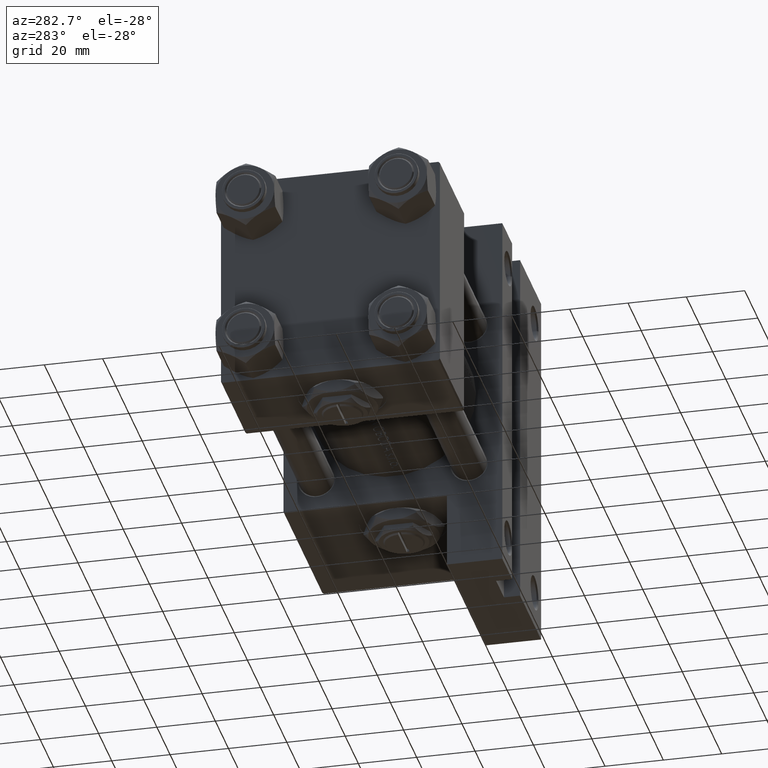
[diagram: clean part render]
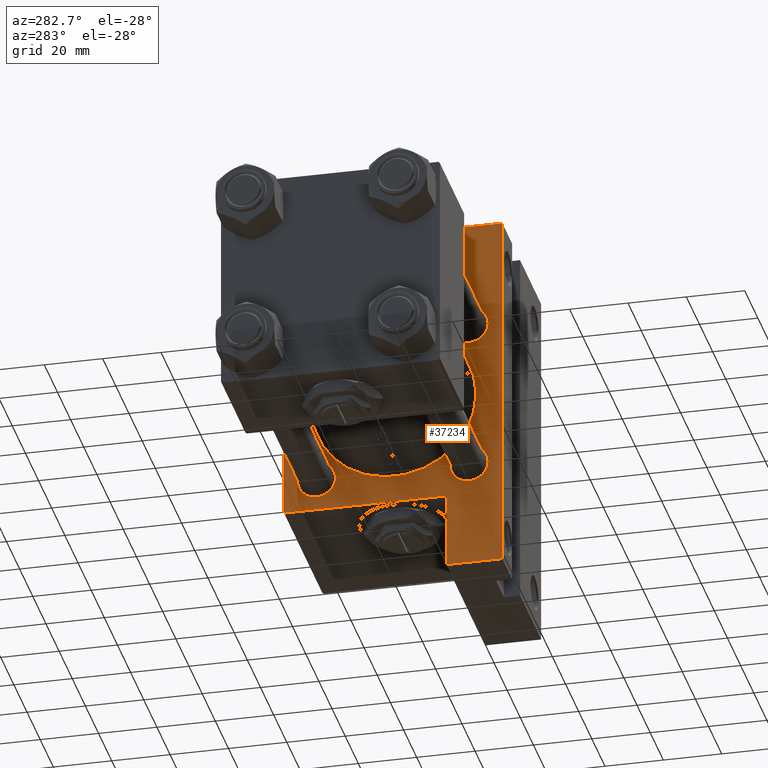
[diagram: same view with one face highlighted and labeled with its STEP entity id]
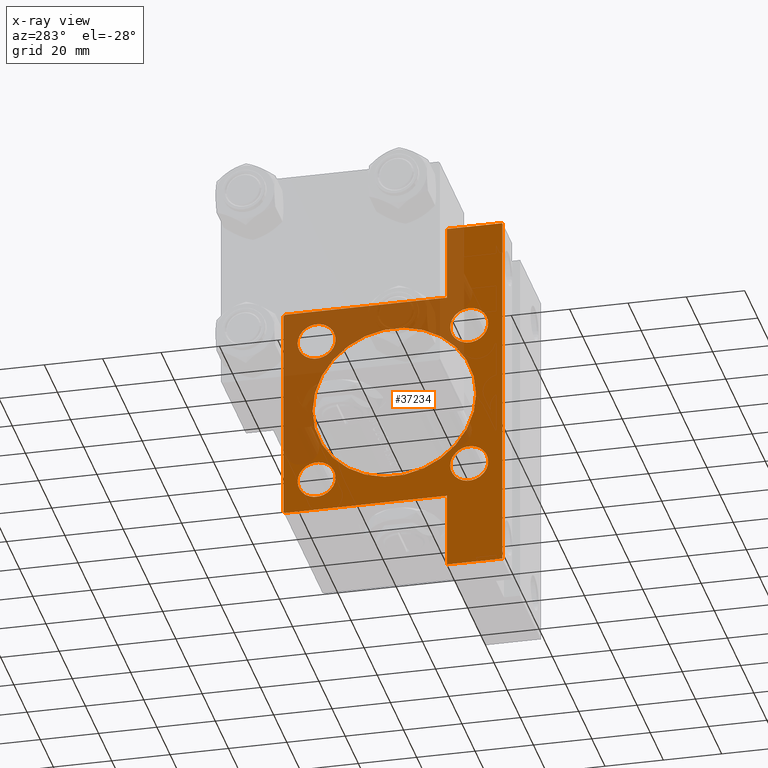
[diagram: x-ray of the same camera — body ghosted, the highlighted face saturated]
A machine part, auxiliary view. The second image highlights one B-rep face of the part: STEP entity #37234.
The next image is the same camera in x-ray: the body ghosted, the highlighted face saturated — about 37% of this face is hidden behind the body in this view.
In plain terms, the highlighted planar face has unit normal (-1, 0, 0).
Its self-contained STEP definition (entity closure, byte-faithful):
#601 = AXIS2_PLACEMENT_3D ( 'NONE', #37232, #17621, #44495 ) ;
#608 = CARTESIAN_POINT ( 'NONE',  ( 95.00000000000000000, 26.14999999999999858, 32.65000000000000568 ) ) ;
#650 = CARTESIAN_POINT ( 'NONE',  ( 95.00000000000000000, -26.14999999999999147, -32.65000000000002700 ) ) ;
#1068 = LINE ( 'NONE', #23197, #16963 ) ;
#1656 = CIRCLE ( 'NONE', #28155, 6.500000000000008882 ) ;
#2087 = ORIENTED_EDGE ( 'NONE', *, *, #8137, .T. ) ;
#2089 = DIRECTION ( 'NONE',  ( 1.000000000000000000, 0.000000000000000000, -0.000000000000000000 ) ) ;
#2358 = EDGE_CURVE ( 'NONE', #13816, #39200, #30454, .T. ) ;
#2895 = VERTEX_POINT ( 'NONE', #650 ) ;
#2932 = DIRECTION ( 'NONE',  ( 1.000000000000000000, 0.000000000000000000, -0.000000000000000000 ) ) ;
#3239 = CIRCLE ( 'NONE', #40975, 6.500000000000008882 ) ;
#3298 = EDGE_LOOP ( 'NONE', ( #44631, #12015 ) ) ;
#4164 = ORIENTED_EDGE ( 'NONE', *, *, #12961, .T. ) ;
#4298 = EDGE_CURVE ( 'NONE', #33966, #28592, #41866, .T. ) ;
#4715 = ORIENTED_EDGE ( 'NONE', *, *, #10370, .T. ) ;
#5407 = CIRCLE ( 'NONE', #601, 6.500000000000008882 ) ;
#5528 = CARTESIAN_POINT ( 'NONE',  ( 95.00000000000000000, 3.490243377569955667E-15, -28.50000000000000000 ) ) ;
#6113 = CARTESIAN_POINT ( 'NONE',  ( 95.00000000000000000, 63.50000000000000000, -37.50000000000000000 ) ) ;
#6352 = EDGE_CURVE ( 'NONE', #44929, #12381, #48087, .T. ) ;
#6944 = EDGE_CURVE ( 'NONE', #48220, #46235, #8399, .T. ) ;
#7320 = ORIENTED_EDGE ( 'NONE', *, *, #16291, .F. ) ;
#7622 = VERTEX_POINT ( 'NONE', #8929 ) ;
#8137 = EDGE_CURVE ( 'NONE', #2895, #38371, #1656, .T. ) ;
#8359 = DIRECTION ( 'NONE',  ( 0.000000000000000000, -1.000000000000000000, -1.850371707708594316E-16 ) ) ;
#8399 = LINE ( 'NONE', #15930, #39322 ) ;
#8809 = AXIS2_PLACEMENT_3D ( 'NONE', #38814, #19736, #27523 ) ;
#8929 = CARTESIAN_POINT ( 'NONE',  ( 95.00000000000000000, 26.14999999999999858, -19.64999999999999503 ) ) ;
#9487 = VECTOR ( 'NONE', #29991, 1000.000000000000000 ) ;
#9694 = LINE ( 'NONE', #47638, #10516 ) ;
#9855 = ORIENTED_EDGE ( 'NONE', *, *, #44781, .T. ) ;
#9905 = CARTESIAN_POINT ( 'NONE',  ( 95.00000000000000000, -26.14999999999999147, 19.65000000000000213 ) ) ;
#9944 = DIRECTION ( 'NONE',  ( 0.000000000000000000, 0.000000000000000000, 1.000000000000000000 ) ) ;
#10011 = CARTESIAN_POINT ( 'NONE',  ( 94.99999999999998579, -63.50000000000000000, -18.50000000000000000 ) ) ;
#10079 = DIRECTION ( 'NONE',  ( -0.000000000000000000, 0.7071067811865672237, 0.7071067811865279218 ) ) ;
#10344 = CARTESIAN_POINT ( 'NONE',  ( 95.00000000000000000, 37.50000000000000000, 37.49999999999999289 ) ) ;
#10370 = EDGE_CURVE ( 'NONE', #12558, #23227, #29836, .T. ) ;
#10400 = CIRCLE ( 'NONE', #24064, 28.00000000000000000 ) ;
#10516 = VECTOR ( 'NONE', #32563, 1000.000000000000114 ) ;
#10768 = EDGE_LOOP ( 'NONE', ( #30867, #2087 ) ) ;
#10880 = DIRECTION ( 'NONE',  ( 0.000000000000000000, 0.000000000000000000, -1.000000000000000000 ) ) ;
#11018 = ORIENTED_EDGE ( 'NONE', *, *, #6944, .T. ) ;
#11228 = CARTESIAN_POINT ( 'NONE',  ( 95.00000000000000000, -26.14999999999999147, 32.65000000000001990 ) ) ;
#11290 = CARTESIAN_POINT ( 'NONE',  ( 95.00000000000000000, -37.50000000000000000, 37.49999999999997868 ) ) ;
#11382 = CARTESIAN_POINT ( 'NONE',  ( 95.00000000000000000, 6.123233995736772199E-17, 27.50000000000000000 ) ) ;
#11522 = CARTESIAN_POINT ( 'NONE',  ( 95.00000000000000000, 26.14999999999999858, 26.15000000000000213 ) ) ;
#11573 = EDGE_CURVE ( 'NONE', #16020, #46884, #41869, .T. ) ;
#11635 = VERTEX_POINT ( 'NONE', #27794 ) ;
#12015 = ORIENTED_EDGE ( 'NONE', *, *, #30690, .T. ) ;
#12129 = LINE ( 'NONE', #42776, #26429 ) ;
#12304 = EDGE_CURVE ( 'NONE', #33966, #46235, #27435, .T. ) ;
#12347 = CARTESIAN_POINT ( 'NONE',  ( 94.99999999999998579, -63.50000000000000000, -18.50000000000000000 ) ) ;
#12381 = VERTEX_POINT ( 'NONE', #5528 ) ;
#12511 = EDGE_CURVE ( 'NONE', #11635, #28592, #19075, .T. ) ;
#12530 = DIRECTION ( 'NONE',  ( 0.000000000000000000, 0.000000000000000000, -1.000000000000000000 ) ) ;
#12558 = VERTEX_POINT ( 'NONE', #36145 ) ;
#12961 = EDGE_CURVE ( 'NONE', #15891, #48220, #29234, .T. ) ;
#13031 = CARTESIAN_POINT ( 'NONE',  ( 95.00000000000000000, 6.123233995736772199E-17, -0.5000000000000004441 ) ) ;
#13550 = ORIENTED_EDGE ( 'NONE', *, *, #21171, .T. ) ;
#13816 = VERTEX_POINT ( 'NONE', #26039 ) ;
#13971 = EDGE_CURVE ( 'NONE', #38371, #2895, #24857, .T. ) ;
#14774 = CARTESIAN_POINT ( 'NONE',  ( 95.00000000000000000, 0.000000000000000000, 0.000000000000000000 ) ) ;
#14972 = CARTESIAN_POINT ( 'NONE',  ( 95.00000000000000000, 63.50000000000000000, -18.50000000000000000 ) ) ;
#15891 = VERTEX_POINT ( 'NONE', #14972 ) ;
#15930 = CARTESIAN_POINT ( 'NONE',  ( 95.00000000000000000, 37.50000000000000000, -37.50000000000000000 ) ) ;
#16020 = VERTEX_POINT ( 'NONE', #9905 ) ;
#16163 = DIRECTION ( 'NONE',  ( 0.000000000000000000, 0.000000000000000000, 1.000000000000000000 ) ) ;
#16291 = EDGE_CURVE ( 'NONE', #24195, #31434, #12129, .T. ) ;
#16415 = CARTESIAN_POINT ( 'NONE',  ( 95.00000000000000000, -26.14999999999999147, -26.15000000000000924 ) ) ;
#16521 = CARTESIAN_POINT ( 'NONE',  ( 95.00000000000000000, 26.14999999999999858, -32.65000000000001279 ) ) ;
#16737 = DIRECTION ( 'NONE',  ( 1.000000000000000000, 0.000000000000000000, -0.000000000000000000 ) ) ;
#16963 = VECTOR ( 'NONE', #26975, 1000.000000000000000 ) ;
#17496 = ORIENTED_EDGE ( 'NONE', *, *, #12304, .F. ) ;
#17621 = DIRECTION ( 'NONE',  ( 1.000000000000000000, 0.000000000000000000, -0.000000000000000000 ) ) ;
#17815 = AXIS2_PLACEMENT_3D ( 'NONE', #37369, #2932, #33580 ) ;
#17933 = CARTESIAN_POINT ( 'NONE',  ( 95.00000000000000000, 26.14999999999999858, 26.15000000000000213 ) ) ;
#18180 = CARTESIAN_POINT ( 'NONE',  ( 95.00000000000000000, 6.123233995736772199E-17, -0.5000000000000004441 ) ) ;
#18288 = FACE_BOUND ( 'NONE', #10768, .T. ) ;
#18468 = AXIS2_PLACEMENT_3D ( 'NONE', #14774, #49187, #44903 ) ;
#18545 = FACE_OUTER_BOUND ( 'NONE', #25234, .T. ) ;
#18599 = DIRECTION ( 'NONE',  ( 0.000000000000000000, 0.000000000000000000, 1.000000000000000000 ) ) ;
#19075 = LINE ( 'NONE', #11290, #20670 ) ;
#19268 = EDGE_CURVE ( 'NONE', #46884, #16020, #25745, .T. ) ;
#19571 = VECTOR ( 'NONE', #30208, 1000.000000000000000 ) ;
#19736 = DIRECTION ( 'NONE',  ( 1.000000000000000000, 0.000000000000000000, -0.000000000000000000 ) ) ;
#19791 = EDGE_CURVE ( 'NONE', #7622, #31149, #3239, .T. ) ;
#19815 = ORIENTED_EDGE ( 'NONE', *, *, #19268, .T. ) ;
#20230 = DIRECTION ( 'NONE',  ( 0.000000000000000000, -1.000000000000000000, 0.000000000000000000 ) ) ;
#20670 = VECTOR ( 'NONE', #22870, 1000.000000000000000 ) ;
#20684 = DIRECTION ( 'NONE',  ( 1.000000000000000000, 0.000000000000000000, -0.000000000000000000 ) ) ;
#20692 = EDGE_CURVE ( 'NONE', #24195, #13816, #9694, .T. ) ;
#21171 = EDGE_CURVE ( 'NONE', #12381, #44929, #10400, .T. ) ;
#21413 = EDGE_CURVE ( 'NONE', #11635, #31434, #41463, .T. ) ;
#21586 = CARTESIAN_POINT ( 'NONE',  ( 95.00000000000000000, 37.00000000000000000, 37.49999999999999289 ) ) ;
#22156 = CARTESIAN_POINT ( 'NONE',  ( 95.00000000000000000, -37.24999999999894129, 37.25000000000100897 ) ) ;
#22384 = ORIENTED_EDGE ( 'NONE', *, *, #6352, .T. ) ;
#22573 = FACE_BOUND ( 'NONE', #42137, .T. ) ;
#22803 = CARTESIAN_POINT ( 'NONE',  ( 94.99999999999998579, -63.50000000000000000, -18.50000000000000000 ) ) ;
#22870 = DIRECTION ( 'NONE',  ( 0.000000000000000000, -9.251858538542972814E-17, -1.000000000000000000 ) ) ;
#23197 = CARTESIAN_POINT ( 'NONE',  ( 95.00000000000000000, 63.50000000000000000, -18.50000000000000000 ) ) ;
#23227 = VERTEX_POINT ( 'NONE', #608 ) ;
#24064 = AXIS2_PLACEMENT_3D ( 'NONE', #18180, #33247, #10880 ) ;
#24195 = VERTEX_POINT ( 'NONE', #21586 ) ;
#24857 = CIRCLE ( 'NONE', #8809, 6.500000000000008882 ) ;
#25234 = EDGE_LOOP ( 'NONE', ( #7320, #45943, #46984, #28628, #4164, #11018, #17496, #29403, #45171, #25825 ) ) ;
#25745 = CIRCLE ( 'NONE', #45778, 6.500000000000008882 ) ;
#25825 = ORIENTED_EDGE ( 'NONE', *, *, #21413, .T. ) ;
#26039 = CARTESIAN_POINT ( 'NONE',  ( 95.00000000000000000, 37.50000000000000000, 36.99999999999999289 ) ) ;
#26429 = VECTOR ( 'NONE', #8359, 1000.000000000000000 ) ;
#26871 = DIRECTION ( 'NONE',  ( 1.000000000000000000, 0.000000000000000000, -0.000000000000000000 ) ) ;
#26897 = CARTESIAN_POINT ( 'NONE',  ( 95.00000000000000000, -26.14999999999999147, 26.15000000000000924 ) ) ;
#26975 = DIRECTION ( 'NONE',  ( -0.000000000000000000, 1.000000000000000000, -0.000000000000000000 ) ) ;
#27435 = LINE ( 'NONE', #12347, #47929 ) ;
#27523 = DIRECTION ( 'NONE',  ( 0.000000000000000000, 0.000000000000000000, 1.000000000000000000 ) ) ;
#27794 = CARTESIAN_POINT ( 'NONE',  ( 95.00000000000000000, -37.50000000000000000, 36.99999999999997868 ) ) ;
#28155 = AXIS2_PLACEMENT_3D ( 'NONE', #16415, #20684, #16163 ) ;
#28592 = VERTEX_POINT ( 'NONE', #30760 ) ;
#28628 = ORIENTED_EDGE ( 'NONE', *, *, #39258, .T. ) ;
#29234 = LINE ( 'NONE', #29730, #9487 ) ;
#29403 = ORIENTED_EDGE ( 'NONE', *, *, #4298, .T. ) ;
#29730 = CARTESIAN_POINT ( 'NONE',  ( 95.00000000000000000, 63.50000000000000000, -18.50000000000000000 ) ) ;
#29836 = CIRCLE ( 'NONE', #31413, 6.499999999999995559 ) ;
#29991 = DIRECTION ( 'NONE',  ( 0.000000000000000000, 0.000000000000000000, -1.000000000000000000 ) ) ;
#30208 = DIRECTION ( 'NONE',  ( 0.000000000000000000, 0.000000000000000000, -1.000000000000000000 ) ) ;
#30327 = DIRECTION ( 'NONE',  ( 5.337610695313252371E-16, 1.000000000000000000, 0.000000000000000000 ) ) ;
#30454 = LINE ( 'NONE', #10344, #19571 ) ;
#30565 = CARTESIAN_POINT ( 'NONE',  ( 95.00000000000000000, -36.99999999999997158, 37.49999999999997868 ) ) ;
#30690 = EDGE_CURVE ( 'NONE', #31149, #7622, #5407, .T. ) ;
#30760 = CARTESIAN_POINT ( 'NONE',  ( 95.00000000000000000, -37.50000000000000000, -18.50000000000000000 ) ) ;
#30867 = ORIENTED_EDGE ( 'NONE', *, *, #13971, .T. ) ;
#31149 = VERTEX_POINT ( 'NONE', #16521 ) ;
#31413 = AXIS2_PLACEMENT_3D ( 'NONE', #11522, #26871, #42157 ) ;
#31434 = VERTEX_POINT ( 'NONE', #30565 ) ;
#32563 = DIRECTION ( 'NONE',  ( 0.000000000000000000, 0.7071067811865474617, -0.7071067811865474617 ) ) ;
#32862 = AXIS2_PLACEMENT_3D ( 'NONE', #13031, #47178, #12530 ) ;
#33247 = DIRECTION ( 'NONE',  ( 1.000000000000000000, 0.000000000000000000, 0.000000000000000000 ) ) ;
#33580 = DIRECTION ( 'NONE',  ( 0.000000000000000000, 0.000000000000000000, 1.000000000000000000 ) ) ;
#33966 = VERTEX_POINT ( 'NONE', #10011 ) ;
#33974 = VECTOR ( 'NONE', #30327, 1000.000000000000000 ) ;
#34674 = DIRECTION ( 'NONE',  ( 1.000000000000000000, 0.000000000000000000, -0.000000000000000000 ) ) ;
#36145 = CARTESIAN_POINT ( 'NONE',  ( 95.00000000000000000, 26.14999999999999858, 19.65000000000000568 ) ) ;
#36825 = CARTESIAN_POINT ( 'NONE',  ( 95.00000000000000000, 26.14999999999999858, -26.15000000000000213 ) ) ;
#37232 = CARTESIAN_POINT ( 'NONE',  ( 95.00000000000000000, 26.14999999999999858, -26.15000000000000213 ) ) ;
#37234 = ADVANCED_FACE ( 'NONE', ( #22573, #45909, #48927, #18288, #37390, #18545 ), #41892, .T. ) ;
#37369 = CARTESIAN_POINT ( 'NONE',  ( 95.00000000000000000, -26.14999999999999147, 26.15000000000000924 ) ) ;
#37390 = FACE_BOUND ( 'NONE', #47778, .T. ) ;
#38371 = VERTEX_POINT ( 'NONE', #40537 ) ;
#38814 = CARTESIAN_POINT ( 'NONE',  ( 95.00000000000000000, -26.14999999999999147, -26.15000000000000924 ) ) ;
#39200 = VERTEX_POINT ( 'NONE', #44799 ) ;
#39258 = EDGE_CURVE ( 'NONE', #39200, #15891, #1068, .T. ) ;
#39322 = VECTOR ( 'NONE', #20230, 1000.000000000000000 ) ;
#40292 = DIRECTION ( 'NONE',  ( 0.000000000000000000, 0.000000000000000000, 1.000000000000000000 ) ) ;
#40537 = CARTESIAN_POINT ( 'NONE',  ( 95.00000000000000000, -26.14999999999999147, -19.65000000000000213 ) ) ;
#40929 = CIRCLE ( 'NONE', #47337, 6.499999999999995559 ) ;
#40975 = AXIS2_PLACEMENT_3D ( 'NONE', #36825, #16737, #9944 ) ;
#41463 = LINE ( 'NONE', #22156, #48127 ) ;
#41866 = LINE ( 'NONE', #22803, #33974 ) ;
#41869 = CIRCLE ( 'NONE', #17815, 6.500000000000008882 ) ;
#41892 = PLANE ( 'NONE',  #18468 ) ;
#42137 = EDGE_LOOP ( 'NONE', ( #19815, #46674 ) ) ;
#42157 = DIRECTION ( 'NONE',  ( 0.000000000000000000, 0.000000000000000000, 1.000000000000000000 ) ) ;
#42776 = CARTESIAN_POINT ( 'NONE',  ( 95.00000000000000000, 37.50000000000000000, 37.49999999999999289 ) ) ;
#43832 = CARTESIAN_POINT ( 'NONE',  ( 94.99999999999998579, -63.50000000000000000, -37.50000000000000000 ) ) ;
#44495 = DIRECTION ( 'NONE',  ( 0.000000000000000000, 0.000000000000000000, 1.000000000000000000 ) ) ;
#44631 = ORIENTED_EDGE ( 'NONE', *, *, #19791, .T. ) ;
#44781 = EDGE_CURVE ( 'NONE', #23227, #12558, #40929, .T. ) ;
#44799 = CARTESIAN_POINT ( 'NONE',  ( 95.00000000000000000, 37.50000000000000000, -18.50000000000000355 ) ) ;
#44903 = DIRECTION ( 'NONE',  ( 0.000000000000000000, 0.000000000000000000, 1.000000000000000000 ) ) ;
#44929 = VERTEX_POINT ( 'NONE', #11382 ) ;
#45171 = ORIENTED_EDGE ( 'NONE', *, *, #12511, .F. ) ;
#45778 = AXIS2_PLACEMENT_3D ( 'NONE', #26897, #34674, #18599 ) ;
#45909 = FACE_BOUND ( 'NONE', #46816, .T. ) ;
#45943 = ORIENTED_EDGE ( 'NONE', *, *, #20692, .T. ) ;
#46016 = DIRECTION ( 'NONE',  ( 0.000000000000000000, 0.000000000000000000, -1.000000000000000000 ) ) ;
#46235 = VERTEX_POINT ( 'NONE', #43832 ) ;
#46674 = ORIENTED_EDGE ( 'NONE', *, *, #11573, .T. ) ;
#46816 = EDGE_LOOP ( 'NONE', ( #9855, #4715 ) ) ;
#46884 = VERTEX_POINT ( 'NONE', #11228 ) ;
#46984 = ORIENTED_EDGE ( 'NONE', *, *, #2358, .T. ) ;
#47178 = DIRECTION ( 'NONE',  ( 1.000000000000000000, 0.000000000000000000, 0.000000000000000000 ) ) ;
#47337 = AXIS2_PLACEMENT_3D ( 'NONE', #17933, #2089, #40292 ) ;
#47638 = CARTESIAN_POINT ( 'NONE',  ( 95.00000000000000000, 37.25000000000000000, 37.25000000000000000 ) ) ;
#47778 = EDGE_LOOP ( 'NONE', ( #22384, #13550 ) ) ;
#47929 = VECTOR ( 'NONE', #46016, 1000.000000000000000 ) ;
#48087 = CIRCLE ( 'NONE', #32862, 28.00000000000000000 ) ;
#48127 = VECTOR ( 'NONE', #10079, 1000.000000000000000 ) ;
#48220 = VERTEX_POINT ( 'NONE', #6113 ) ;
#48927 = FACE_BOUND ( 'NONE', #3298, .T. ) ;
#49187 = DIRECTION ( 'NONE',  ( -1.000000000000000000, -0.000000000000000000, 0.000000000000000000 ) ) ;